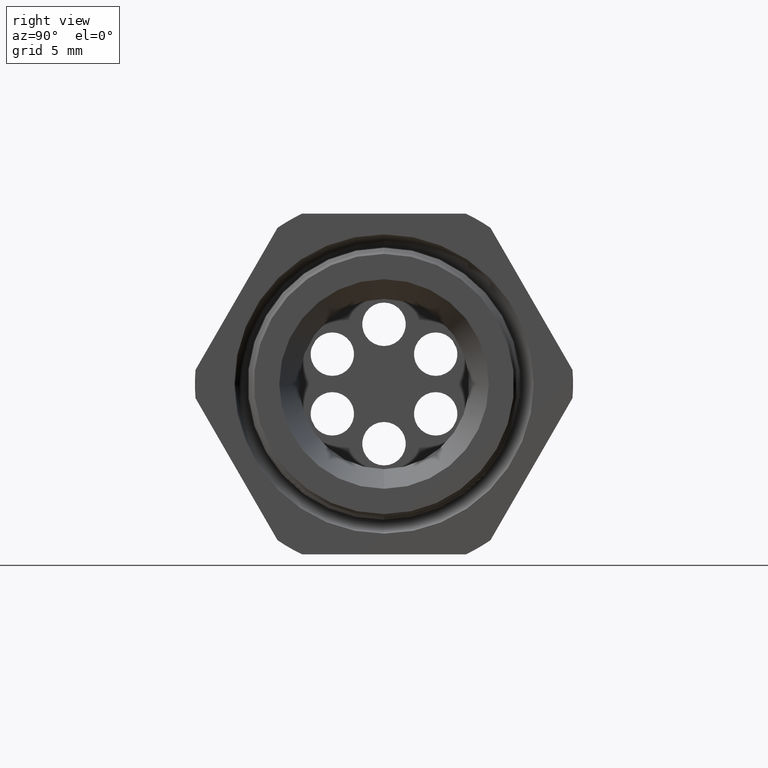
[diagram: clean part render]
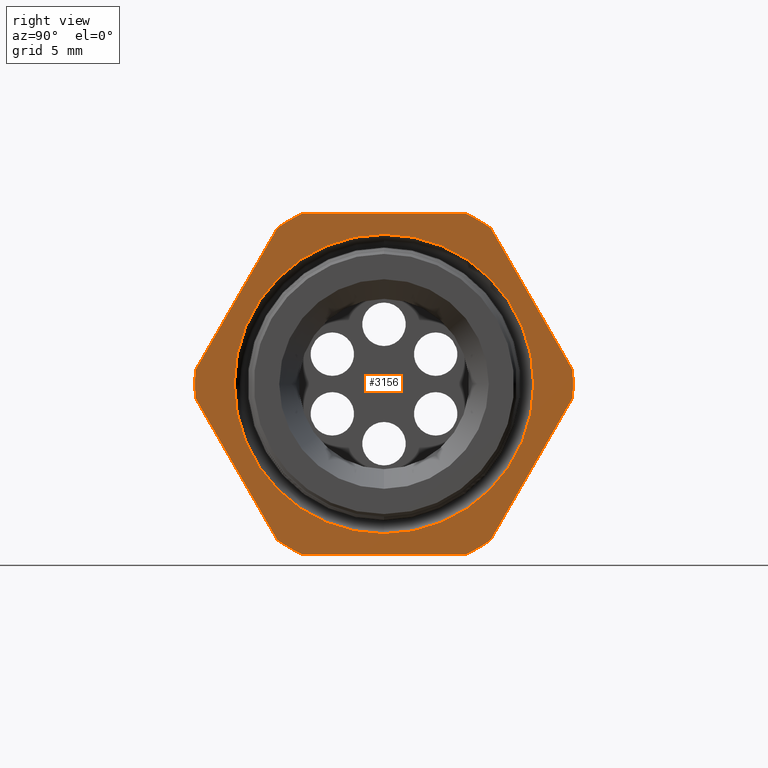
[diagram: same view with one face highlighted and labeled with its STEP entity id]
A machine part, right view. The second image highlights one B-rep face of the part: STEP entity #3156.
In plain terms, the highlighted planar face has unit normal (1, 0, 0).
Its self-contained STEP definition (entity closure, byte-faithful):
#1105 = VERTEX_POINT ( 'NONE', #3548 ) ;
#1107 = EDGE_CURVE ( 'NONE', #1105, #1108, #3547, .T. ) ;
#1108 = VERTEX_POINT ( 'NONE', #3542 ) ;
#3143 = ORIENTED_EDGE ( 'NONE', *, *, #3146, .F. ) ;
#3144 = ORIENTED_EDGE ( 'NONE', *, *, #1107, .F. ) ;
#3146 = EDGE_CURVE ( 'NONE', #1108, #1105, #3964, .T. ) ;
#3152 = EDGE_LOOP ( 'NONE', ( #3143, #3144 ) ) ;
#3155 = VERTEX_POINT ( 'NONE', #4014 ) ;
#3156 = ADVANCED_FACE ( 'NONE', ( #4013, #4012 ), #4011, .T. ) ;
#3157 = ORIENTED_EDGE ( 'NONE', *, *, #3165, .T. ) ;
#3163 = ORIENTED_EDGE ( 'NONE', *, *, #3191, .T. ) ;
#3165 = EDGE_CURVE ( 'NONE', #3193, #3155, #3990, .T. ) ;
#3166 = VERTEX_POINT ( 'NONE', #3986 ) ;
#3167 = ORIENTED_EDGE ( 'NONE', *, *, #3169, .T. ) ;
#3169 = EDGE_CURVE ( 'NONE', #3181, #3198, #4048, .T. ) ;
#3170 = EDGE_CURVE ( 'NONE', #3180, #3181, #4044, .T. ) ;
#3171 = ORIENTED_EDGE ( 'NONE', *, *, #3197, .T. ) ;
#3173 = ORIENTED_EDGE ( 'NONE', *, *, #3170, .T. ) ;
#3174 = ORIENTED_EDGE ( 'NONE', *, *, #3179, .T. ) ;
#3175 = EDGE_CURVE ( 'NONE', #3166, #3193, #4034, .T. ) ;
#3178 = EDGE_CURVE ( 'NONE', #3199, #3188, #4030, .T. ) ;
#3179 = EDGE_CURVE ( 'NONE', #3188, #3166, #4026, .T. ) ;
#3180 = VERTEX_POINT ( 'NONE', #4021 ) ;
#3181 = VERTEX_POINT ( 'NONE', #4020 ) ;
#3182 = VERTEX_POINT ( 'NONE', #4019 ) ;
#3185 = VERTEX_POINT ( 'NONE', #4074 ) ;
#3188 = VERTEX_POINT ( 'NONE', #4063 ) ;
#3189 = ORIENTED_EDGE ( 'NONE', *, *, #3194, .T. ) ;
#3191 = EDGE_CURVE ( 'NONE', #3155, #3182, #4062, .T. ) ;
#3193 = VERTEX_POINT ( 'NONE', #4058 ) ;
#3194 = EDGE_CURVE ( 'NONE', #3182, #3185, #4057, .T. ) ;
#3195 = ORIENTED_EDGE ( 'NONE', *, *, #3175, .T. ) ;
#3196 = ORIENTED_EDGE ( 'NONE', *, *, #3178, .T. ) ;
#3197 = EDGE_CURVE ( 'NONE', #3185, #3180, #4052, .T. ) ;
#3198 = VERTEX_POINT ( 'NONE', #4110 ) ;
#3199 = VERTEX_POINT ( 'NONE', #4109 ) ;
#3202 = EDGE_CURVE ( 'NONE', #5373, #3199, #4101, .T. ) ;
#3203 = ORIENTED_EDGE ( 'NONE', *, *, #3210, .T. ) ;
#3210 = EDGE_CURVE ( 'NONE', #3198, #3316, #4137, .T. ) ;
#3315 = ORIENTED_EDGE ( 'NONE', *, *, #3318, .T. ) ;
#3316 = VERTEX_POINT ( 'NONE', #4302 ) ;
#3317 = EDGE_LOOP ( 'NONE', ( #3315, #5374, #3196, #3174, #3195, #3157, #3163, #3189, #3171, #3173, #3167, #3203 ) ) ;
#3318 = EDGE_CURVE ( 'NONE', #3316, #5373, #4301, .T. ) ;
#3542 = CARTESIAN_POINT ( 'NONE',  ( -0.3100000000000000000, 0.0000000000000000000, -0.4130016155952135900 ) ) ;
#3543 = DIRECTION ( 'NONE',  ( 0.0000000000000000000, 0.0000000000000000000, -1.000000000000000000 ) ) ;
#3544 = DIRECTION ( 'NONE',  ( 1.000000000000000000, 0.0000000000000000000, 0.0000000000000000000 ) ) ;
#3545 = CARTESIAN_POINT ( 'NONE',  ( -0.3100000000000000000, 0.0000000000000000000, 0.0000000000000000000 ) ) ;
#3546 = AXIS2_PLACEMENT_3D ( 'NONE', #3545, #3544, #3543 ) ;
#3547 = CIRCLE ( 'NONE', #3546, 0.4130016155952135900 ) ;
#3548 = CARTESIAN_POINT ( 'NONE',  ( -0.3100000000000000000, 5.057811065813639400E-017, 0.4130016155952135900 ) ) ;
#3960 = DIRECTION ( 'NONE',  ( 0.0000000000000000000, 0.0000000000000000000, -1.000000000000000000 ) ) ;
#3961 = DIRECTION ( 'NONE',  ( 1.000000000000000000, 0.0000000000000000000, 0.0000000000000000000 ) ) ;
#3962 = CARTESIAN_POINT ( 'NONE',  ( -0.3100000000000000000, 0.0000000000000000000, 0.0000000000000000000 ) ) ;
#3963 = AXIS2_PLACEMENT_3D ( 'NONE', #3962, #3961, #3960 ) ;
#3964 = CIRCLE ( 'NONE', #3963, 0.4130016155952135900 ) ;
#3986 = CARTESIAN_POINT ( 'NONE',  ( -0.3100000000000000000, 0.2264307620443832800, 0.4699999999999999200 ) ) ;
#3987 = DIRECTION ( 'NONE',  ( 0.0000000000000000000, 0.0000000000000000000, -1.000000000000000000 ) ) ;
#3988 = DIRECTION ( 'NONE',  ( 1.000000000000000000, 0.0000000000000000000, 0.0000000000000000000 ) ) ;
#3989 = AXIS2_PLACEMENT_3D ( 'NONE', #3996, #3988, #3987 ) ;
#3990 = CIRCLE ( 'NONE', #3989, 0.5217000000000000500 ) ;
#3996 = CARTESIAN_POINT ( 'NONE',  ( -0.3100000000000000000, 0.0000000000000000000, 0.0000000000000000000 ) ) ;
#4007 = DIRECTION ( 'NONE',  ( 0.0000000000000000000, 0.0000000000000000000, -1.000000000000000000 ) ) ;
#4008 = DIRECTION ( 'NONE',  ( 1.000000000000000000, 0.0000000000000000000, 0.0000000000000000000 ) ) ;
#4009 = CARTESIAN_POINT ( 'NONE',  ( -0.3100000000000000000, 0.9399999999999999500, 0.0000000000000000000 ) ) ;
#4010 = AXIS2_PLACEMENT_3D ( 'NONE', #4009, #4008, #4007 ) ;
#4011 = PLANE ( 'NONE',  #4010 ) ;
#4012 = FACE_OUTER_BOUND ( 'NONE', #3317, .T. ) ;
#4013 = FACE_BOUND ( 'NONE', #3152, .T. ) ;
#4014 = CARTESIAN_POINT ( 'NONE',  ( -0.3100000000000000000, -0.2938165587564948700, 0.4310947921287048800 ) ) ;
#4019 = CARTESIAN_POINT ( 'NONE',  ( -0.3100000000000000000, -0.5202473208008777700, 0.03890520787129464500 ) ) ;
#4020 = CARTESIAN_POINT ( 'NONE',  ( -0.3100000000000000000, -0.2264307620443830900, -0.4700000000000000300 ) ) ;
#4021 = CARTESIAN_POINT ( 'NONE',  ( -0.3100000000000000000, -0.2938165587564942600, -0.4310947921287053300 ) ) ;
#4022 = DIRECTION ( 'NONE',  ( 0.0000000000000000000, 0.0000000000000000000, -1.000000000000000000 ) ) ;
#4023 = DIRECTION ( 'NONE',  ( 1.000000000000000000, 0.0000000000000000000, 0.0000000000000000000 ) ) ;
#4024 = CARTESIAN_POINT ( 'NONE',  ( -0.3100000000000000000, 0.0000000000000000000, 0.0000000000000000000 ) ) ;
#4025 = AXIS2_PLACEMENT_3D ( 'NONE', #4024, #4023, #4022 ) ;
#4026 = CIRCLE ( 'NONE', #4025, 0.5217000000000000500 ) ;
#4027 = DIRECTION ( 'NONE',  ( 0.0000000000000000000, -0.4999999999999998300, 0.8660254037844386000 ) ) ;
#4028 = VECTOR ( 'NONE', #4027, 39.37007874015748900 ) ;
#4029 = CARTESIAN_POINT ( 'NONE',  ( -0.3100000000000000000, 0.6420319397786862200, -0.1720319397786860500 ) ) ;
#4030 = LINE ( 'NONE', #4029, #4028 ) ;
#4031 = DIRECTION ( 'NONE',  ( 0.0000000000000000000, -1.000000000000000000, 0.0000000000000000000 ) ) ;
#4032 = VECTOR ( 'NONE', #4031, 39.37007874015748100 ) ;
#4033 = CARTESIAN_POINT ( 'NONE',  ( -0.3100000000000000000, 0.9399999999999999500, 0.4699999999999999200 ) ) ;
#4034 = LINE ( 'NONE', #4033, #4032 ) ;
#4040 = DIRECTION ( 'NONE',  ( 0.0000000000000000000, 0.0000000000000000000, -1.000000000000000000 ) ) ;
#4041 = DIRECTION ( 'NONE',  ( 1.000000000000000000, 0.0000000000000000000, 0.0000000000000000000 ) ) ;
#4042 = CARTESIAN_POINT ( 'NONE',  ( -0.3100000000000000000, 0.0000000000000000000, 0.0000000000000000000 ) ) ;
#4043 = AXIS2_PLACEMENT_3D ( 'NONE', #4042, #4041, #4040 ) ;
#4044 = CIRCLE ( 'NONE', #4043, 0.5217000000000000500 ) ;
#4045 = DIRECTION ( 'NONE',  ( 0.0000000000000000000, 1.000000000000000000, 0.0000000000000000000 ) ) ;
#4046 = VECTOR ( 'NONE', #4045, 39.37007874015748100 ) ;
#4047 = CARTESIAN_POINT ( 'NONE',  ( -0.3100000000000000000, 0.9399999999999999500, -0.4700000000000000300 ) ) ;
#4048 = LINE ( 'NONE', #4047, #4046 ) ;
#4049 = DIRECTION ( 'NONE',  ( 0.0000000000000000000, 0.5000000000000001100, -0.8660254037844384900 ) ) ;
#4050 = VECTOR ( 'NONE', #4049, 39.37007874015748900 ) ;
#4051 = CARTESIAN_POINT ( 'NONE',  ( -0.3100000000000000000, -0.1720319397786861700, -0.6420319397786864400 ) ) ;
#4052 = LINE ( 'NONE', #4051, #4050 ) ;
#4053 = DIRECTION ( 'NONE',  ( 0.0000000000000000000, 0.0000000000000000000, -1.000000000000000000 ) ) ;
#4054 = DIRECTION ( 'NONE',  ( 1.000000000000000000, 0.0000000000000000000, 0.0000000000000000000 ) ) ;
#4055 = CARTESIAN_POINT ( 'NONE',  ( -0.3100000000000000000, 0.0000000000000000000, 0.0000000000000000000 ) ) ;
#4056 = AXIS2_PLACEMENT_3D ( 'NONE', #4055, #4054, #4053 ) ;
#4057 = CIRCLE ( 'NONE', #4056, 0.5217000000000000500 ) ;
#4058 = CARTESIAN_POINT ( 'NONE',  ( -0.3100000000000000000, -0.2264307620443835600, 0.4699999999999997500 ) ) ;
#4059 = DIRECTION ( 'NONE',  ( 0.0000000000000000000, -0.4999999999999997200, -0.8660254037844388200 ) ) ;
#4060 = VECTOR ( 'NONE', #4059, 39.37007874015748100 ) ;
#4061 = CARTESIAN_POINT ( 'NONE',  ( -0.3100000000000000000, -0.1720319397786864200, 0.6420319397786857800 ) ) ;
#4062 = LINE ( 'NONE', #4061, #4060 ) ;
#4063 = CARTESIAN_POINT ( 'NONE',  ( -0.3100000000000000000, 0.2938165587564948700, 0.4310947921287048800 ) ) ;
#4074 = CARTESIAN_POINT ( 'NONE',  ( -0.3100000000000000000, -0.5202473208008777700, -0.03890520787129494300 ) ) ;
#4097 = DIRECTION ( 'NONE',  ( 0.0000000000000000000, 0.0000000000000000000, -1.000000000000000000 ) ) ;
#4098 = DIRECTION ( 'NONE',  ( 1.000000000000000000, 0.0000000000000000000, 0.0000000000000000000 ) ) ;
#4099 = CARTESIAN_POINT ( 'NONE',  ( -0.3100000000000000000, 0.0000000000000000000, 0.0000000000000000000 ) ) ;
#4100 = AXIS2_PLACEMENT_3D ( 'NONE', #4099, #4098, #4097 ) ;
#4101 = CIRCLE ( 'NONE', #4100, 0.5217000000000000500 ) ;
#4109 = CARTESIAN_POINT ( 'NONE',  ( -0.3100000000000000000, 0.5202473208008776600, 0.03890520787129518600 ) ) ;
#4110 = CARTESIAN_POINT ( 'NONE',  ( -0.3100000000000000000, 0.2264307620443831200, -0.4700000000000000300 ) ) ;
#4133 = DIRECTION ( 'NONE',  ( 0.0000000000000000000, 0.0000000000000000000, -1.000000000000000000 ) ) ;
#4134 = DIRECTION ( 'NONE',  ( 1.000000000000000000, 0.0000000000000000000, 0.0000000000000000000 ) ) ;
#4135 = CARTESIAN_POINT ( 'NONE',  ( -0.3100000000000000000, 0.0000000000000000000, 0.0000000000000000000 ) ) ;
#4136 = AXIS2_PLACEMENT_3D ( 'NONE', #4135, #4134, #4133 ) ;
#4137 = CIRCLE ( 'NONE', #4136, 0.5217000000000000500 ) ;
#4298 = DIRECTION ( 'NONE',  ( 0.0000000000000000000, 0.5000000000000000000, 0.8660254037844386000 ) ) ;
#4299 = VECTOR ( 'NONE', #4298, 39.37007874015748900 ) ;
#4300 = CARTESIAN_POINT ( 'NONE',  ( -0.3100000000000000000, 0.6420319397786863300, 0.1720319397786860500 ) ) ;
#4301 = LINE ( 'NONE', #4300, #4299 ) ;
#4302 = CARTESIAN_POINT ( 'NONE',  ( -0.3100000000000000000, 0.2938165587564948700, -0.4310947921287048800 ) ) ;
#5003 = CARTESIAN_POINT ( 'NONE',  ( -0.3100000000000000000, 0.5202473208008777700, -0.03890520787129528300 ) ) ;
#5373 = VERTEX_POINT ( 'NONE', #5003 ) ;
#5374 = ORIENTED_EDGE ( 'NONE', *, *, #3202, .T. ) ;